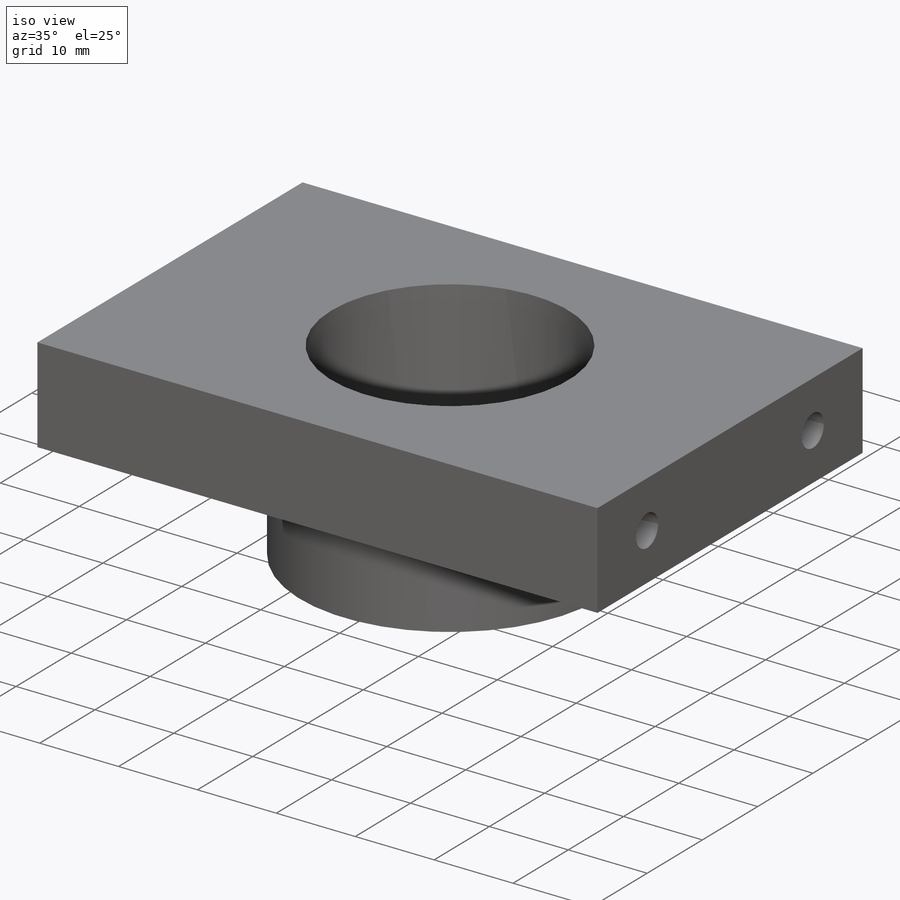
[diagram: iso view]
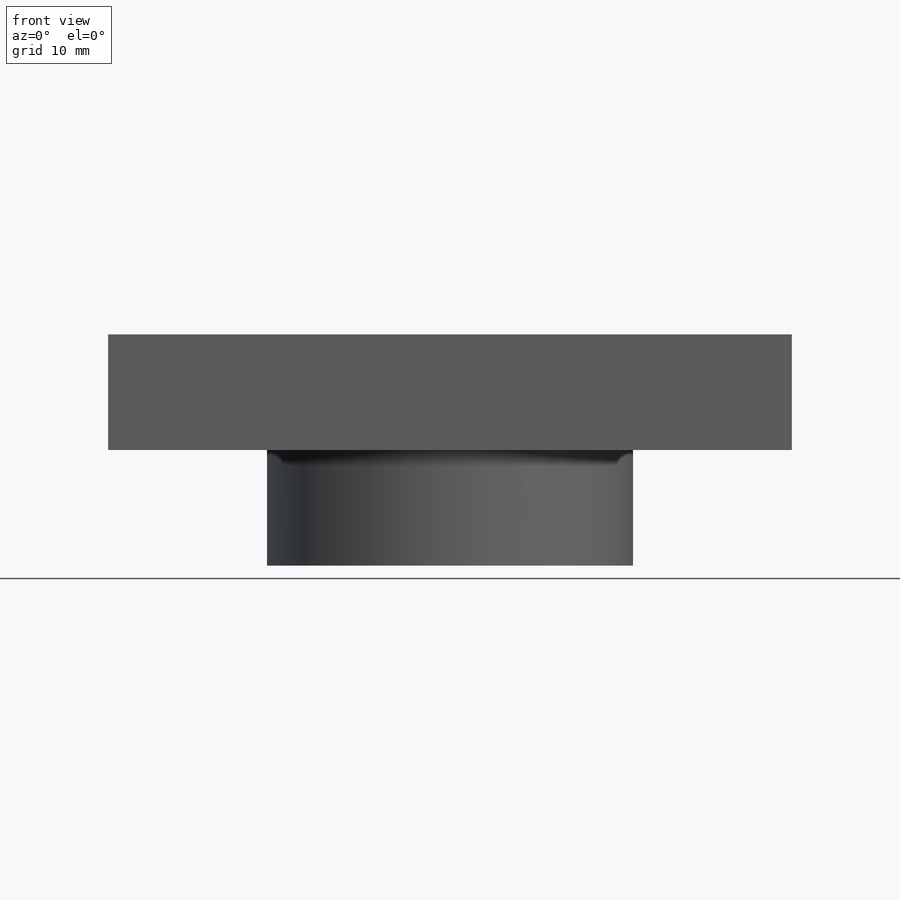
[diagram: front view]
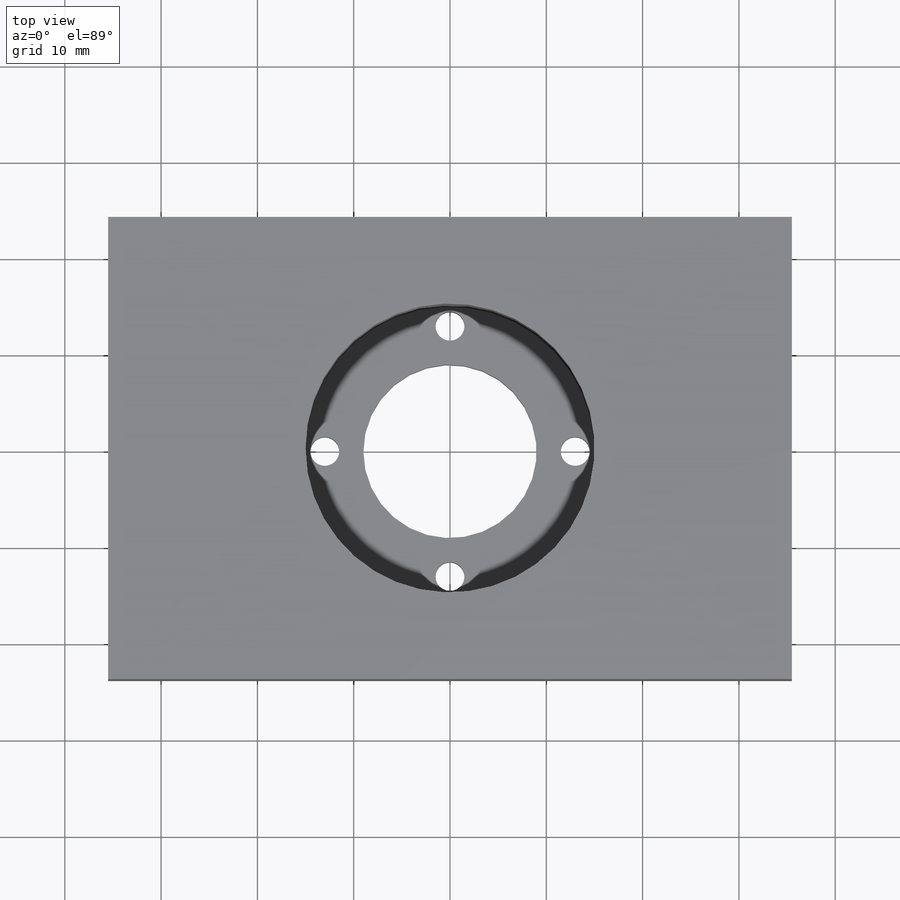
[diagram: top view]
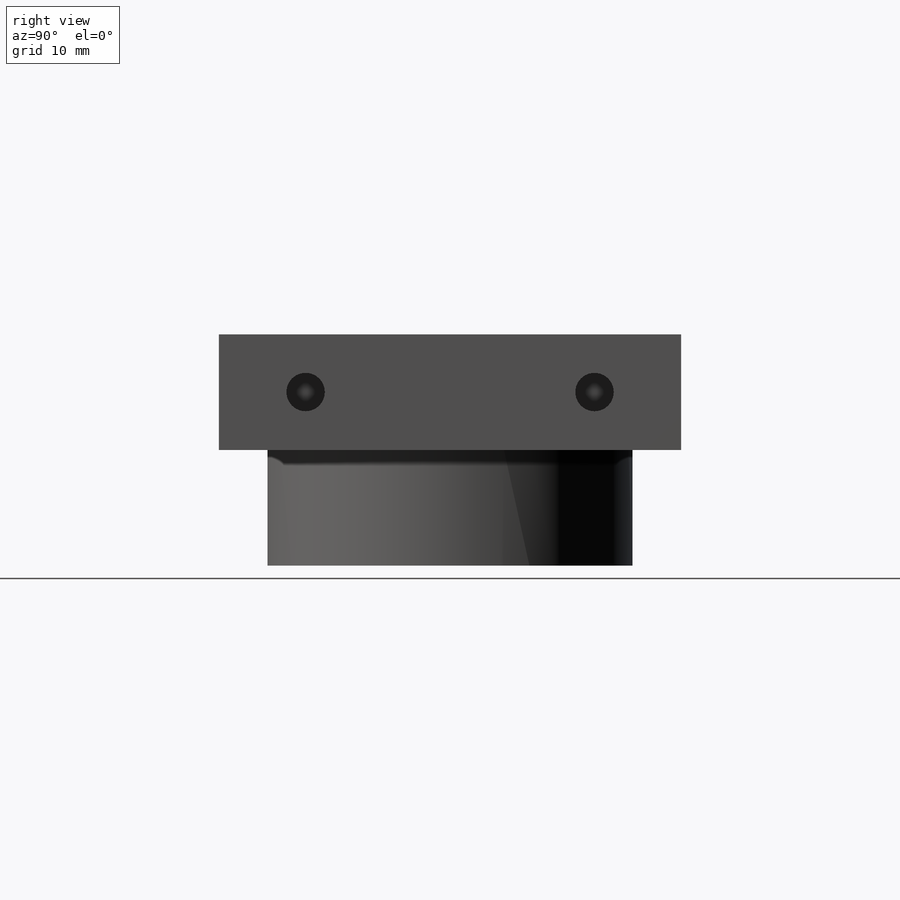
[diagram: right view]
SOLIDWORKS PART (.sldprt)
format: sldprt  version: not decoded by parser v0  size: 210,944 bytes
history: native  units: mm
features: sketch x5, cut_extrude x4, plane x3, material x1, revolve x1 (+13 scaffold rows collapsed)
feature tree (27):
  scaffold x13  (default folders/planes/origin — collapsed)
  material  "Matériau <non spécifié>"
  plane  "Plan de face"
  plane  "Plan de dessus"
  plane  "Plan de droite"
  sketch  "Esquisse1"  dims[c1.D1=20.0mm c1.D2=10.0mm c1.D3=6.0mm c1.D4=9.0mm c1.D5=59.0mm c1.D6=12.0mm c1.D7=12.0mm c2.D1=27.0mm]
  revolve  "Révolution1"  Angle=360deg
  sketch  "Esquisse4"  dims[c1.D1=3.0mm c1.D2=3.0mm c2.D1=13.0mm c2.D2=13.0mm c2.D3=13.0mm c2.D4=13.0mm]
  cut_extrude  "Extrusion3"  [1 undecoded]
  sketch  "Esquisse5"  dims[D1=48.0mm D2=71.0mm D3=35.5mm]
  cut_extrude  "Extrusion4"  [1 undecoded]
  sketch  "Esquisse6"  dims[D1=4.0mm D2=9.0mm]
  cut_extrude  "Extrusion5"  Depth=10mm
  sketch  "Esquisse7"
  cut_extrude  "Extrusion6"  Depth=10mm
decode coverage: 7 of 10 modeling features carry decoded parameters
note: 2 parameter values undecoded
note: suppression state not decoded; provenance and decode notes live in map.json
